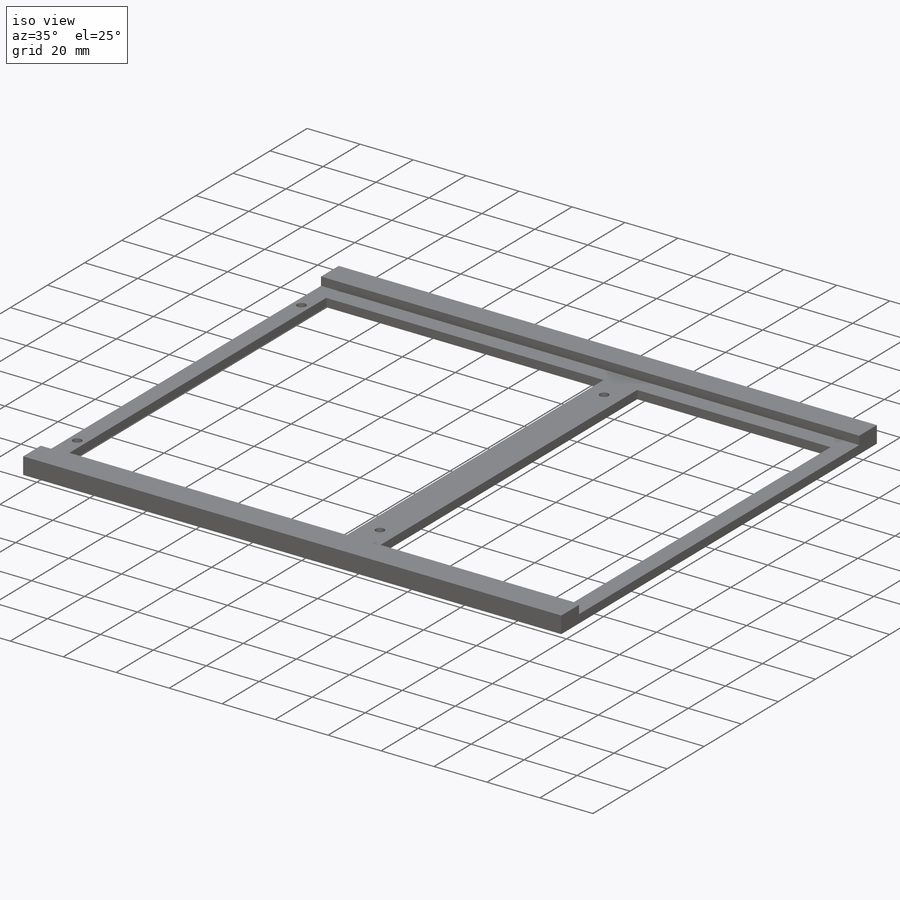
[diagram: iso view]
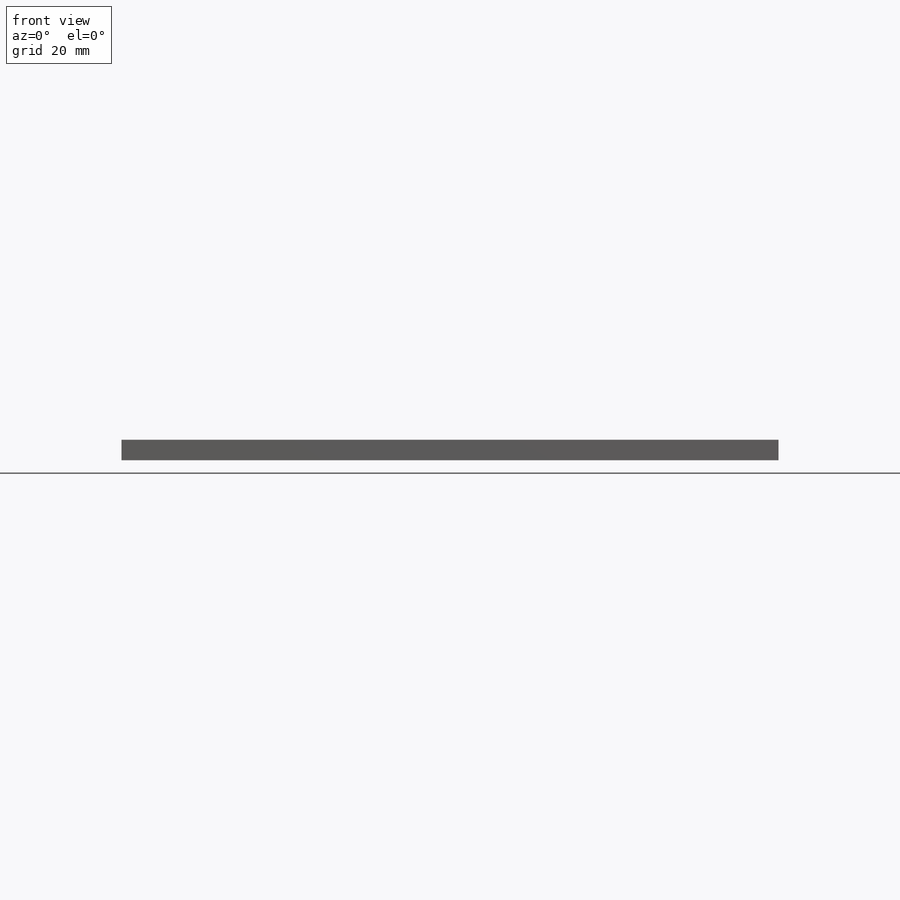
[diagram: front view]
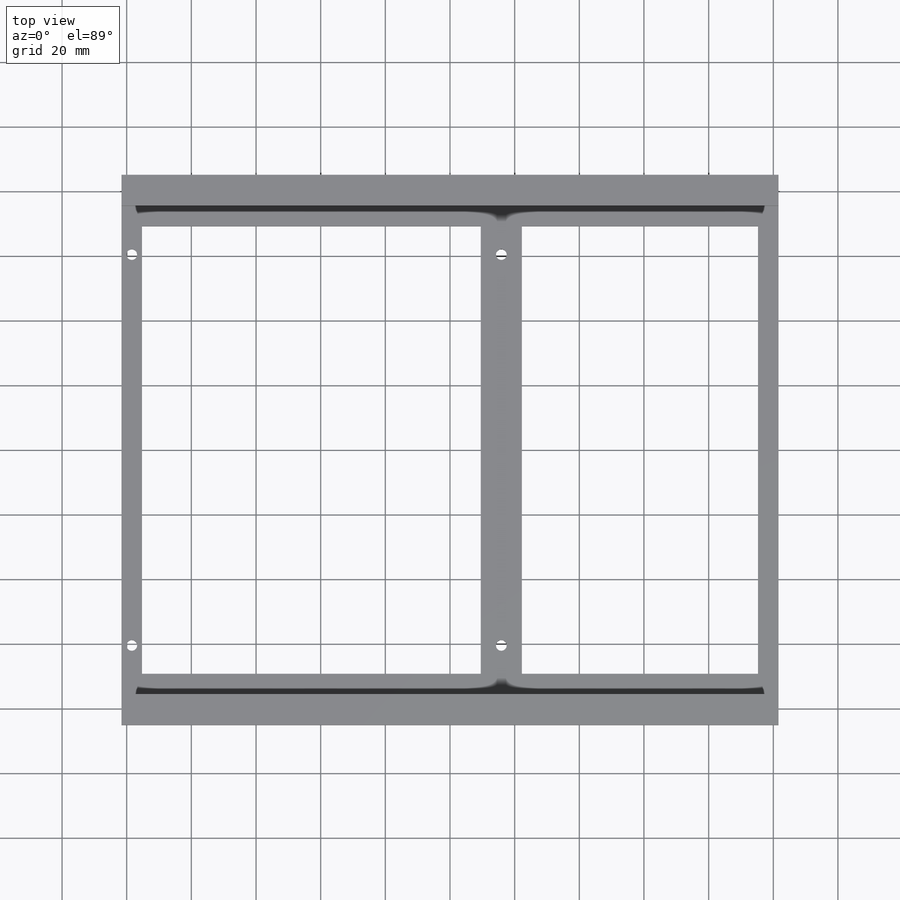
[diagram: top view]
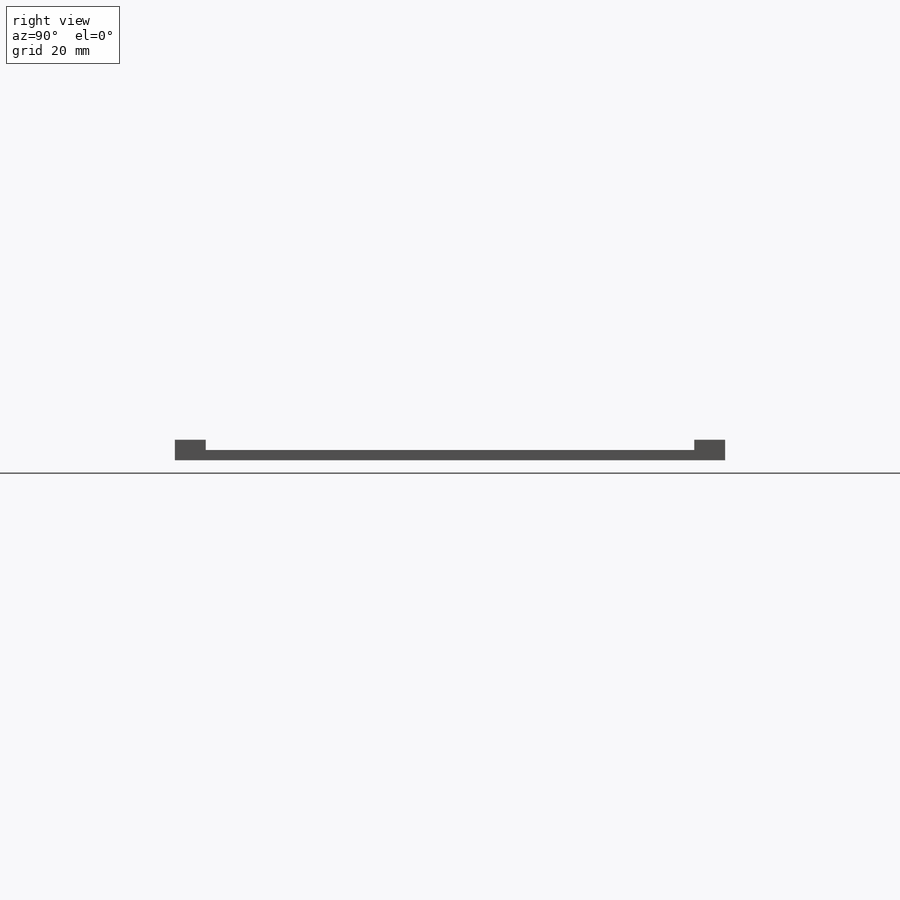
[diagram: right view]
SOLIDWORKS PART (.sldprt)
format: sldprt  version: not decoded by parser v0  size: 230,912 bytes
history: native  units: mm
features: sketch x5, thread x4, cut_extrude x2, material x1, extrude x1, hole x1 (+11 scaffold rows collapsed)
feature tree (25):
  scaffold x11  (default folders/planes/origin — collapsed)
  material  "Material <not specified>"
  sketch  "Sketch1"  dims[D1=203.2mm D2=170.18mm D3=~292.220607mm]
  extrude  "Boss-Extrude1"  Depth=6.35mm
  sketch  "Sketch3"  dims[D1=9.525mm D2=3.175mm]
  cut_extrude  "Cut-Extrude1"  [1 undecoded]
  sketch  "Sketch4"  dims[c1.D1=127.0mm c1.D2=196.85mm c2.D1=6.35mm c2.D2=6.35mm c2.D3=12.7mm c2.D4=138.43mm c3.D4=90.0deg c4.D4=114.3mm]
  cut_extrude  "Cut-Extrude3"  [1 undecoded]
  hole  "M4x0.7 Tapped Hole1"  Diameter=3.3mm Depth=9.906mm
  sketch  "Sketch6"  dims[D1=120.904mm]
  sketch  "Sketch5"  dims[hole-wizard template sketch: 47 standard entries collapsed; hole parameters kept: c15.Tap Drill Depth=9.906mm c15.D3=~14.816244mm c15.Drill Angle=180.0deg]
  thread  "Hole Thread1"  Diameter=3.175mm  [1 undecoded]
  thread  "Hole Thread2"  Diameter=3.175mm  [1 undecoded]
  thread  "Hole Thread3"  Diameter=3.175mm  [1 undecoded]
  thread  "Hole Thread4"  Diameter=3.175mm  [1 undecoded]
decode coverage: 11 of 13 modeling features carry decoded parameters
note: ~ marks probable driven/reference dimensions
note: 6 parameter values undecoded
note: suppression state not decoded; provenance and decode notes live in map.json
